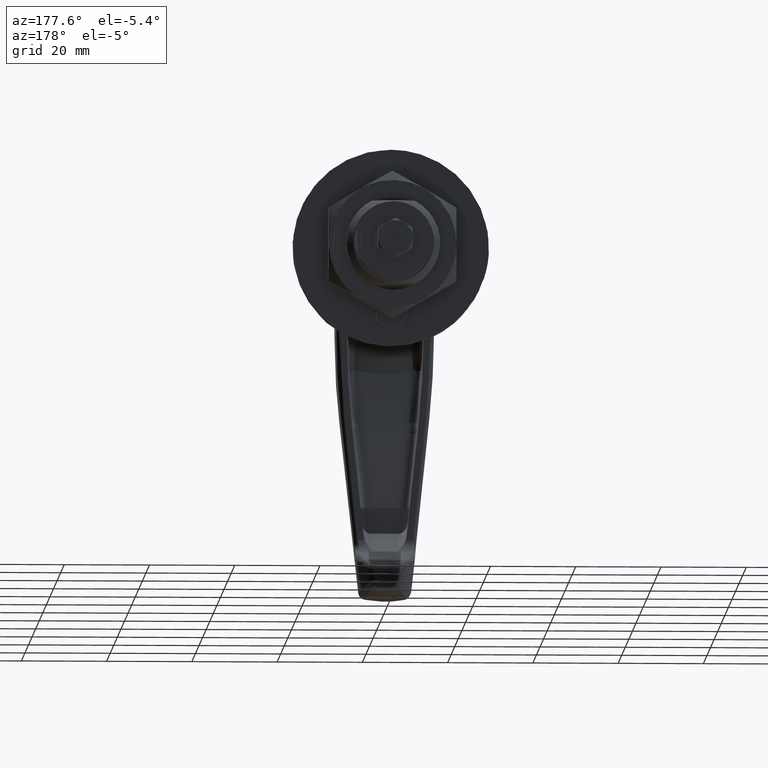
[diagram: clean part render]
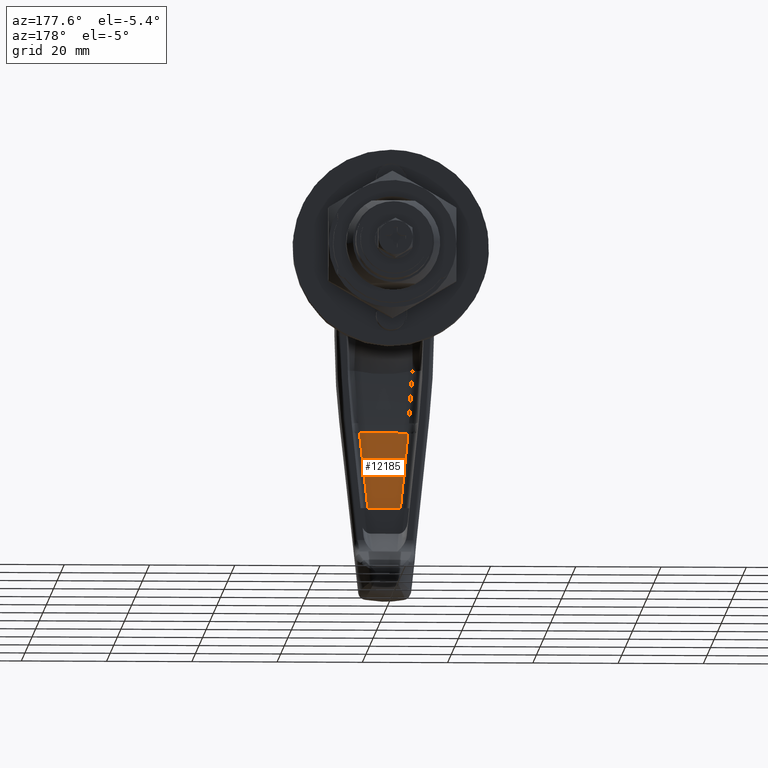
[diagram: same view with one face highlighted and labeled with its STEP entity id]
A machine part, auxiliary view. The second image highlights one B-rep face of the part: STEP entity #12185.
In plain terms, the highlighted face is a freeform B-spline surface patch.
Its self-contained STEP definition (entity closure, byte-faithful):
#10841=CARTESIAN_POINT('',(-40.165774785285848,-5.693558122846440,-39.918088988580152));
#10842=VERTEX_POINT('',#10841);
#10863=CARTESIAN_POINT('',(-38.053260976303847,-3.801615835442475,-58.0));
#10864=VERTEX_POINT('',#10863);
#10878=CARTESIAN_POINT('',(-38.053260976303847,-3.801615835442475,-58.0));
#10879=CARTESIAN_POINT('',(-40.165774785285848,-5.693558122846440,-39.918088988580152));
#10880=QUASI_UNIFORM_CURVE('',1,(#10878,#10879),.UNSPECIFIED.,.F.,.U.);
#10881=EDGE_CURVE('',#10864,#10842,#10880,.T.);
#11397=CARTESIAN_POINT('',(-40.165774785285848,5.693558122846440,-39.918088988580152));
#11398=VERTEX_POINT('',#11397);
#11414=CARTESIAN_POINT('',(-38.053260976303847,3.801615835442585,-58.0));
#11415=VERTEX_POINT('',#11414);
#11416=CARTESIAN_POINT('',(-40.165774785285848,5.693558122846440,-39.918088988580152));
#11417=CARTESIAN_POINT('',(-38.053260976303847,3.801615835442585,-58.0));
#11418=QUASI_UNIFORM_CURVE('',1,(#11416,#11417),.UNSPECIFIED.,.F.,.U.);
#11419=EDGE_CURVE('',#11398,#11415,#11418,.T.);
#12157=CARTESIAN_POINT('',(-38.053260976303847,3.801615835442585,-58.0));
#12158=CARTESIAN_POINT('',(-38.053260976303847,-3.801615835442475,-58.0));
#12159=QUASI_UNIFORM_CURVE('',1,(#12157,#12158),.UNSPECIFIED.,.F.,.U.);
#12160=EDGE_CURVE('',#11415,#10864,#12159,.T.);
#12170=CARTESIAN_POINT('',(-37.947740930734383,-6.262344664142457,-58.903191290771602));
#12171=CARTESIAN_POINT('',(-40.271294585319787,-6.262344664142457,-39.014899799452017));
#12172=CARTESIAN_POINT('',(-37.947740930734383,6.262344867759963,-58.903191290771602));
#12173=CARTESIAN_POINT('',(-40.271294585319787,6.262344867759963,-39.014899799452017));
#12174=B_SPLINE_SURFACE_WITH_KNOTS('',1,1,((#12170,#12172),(#12171,#12173)),.UNSPECIFIED.,.F.,.F.,.U.,(2,2),(2,2),(0.0,20.023562121396669),(0.0,12.524689531902419),.UNSPECIFIED.);
#12175=CARTESIAN_POINT('',(-40.165774785285848,5.693558122846440,-39.918088988580152));
#12176=CARTESIAN_POINT('',(-40.165774785285848,-5.693558122846440,-39.918088988580152));
#12177=QUASI_UNIFORM_CURVE('',1,(#12175,#12176),.UNSPECIFIED.,.F.,.U.);
#12178=EDGE_CURVE('',#11398,#10842,#12177,.T.);
#12179=ORIENTED_EDGE('',*,*,#12178,.T.);
#12180=ORIENTED_EDGE('',*,*,#10881,.F.);
#12181=ORIENTED_EDGE('',*,*,#12160,.F.);
#12182=ORIENTED_EDGE('',*,*,#11419,.F.);
#12183=EDGE_LOOP('',(#12179,#12180,#12181,#12182));
#12184=FACE_OUTER_BOUND('',#12183,.T.);
#12185=ADVANCED_FACE('',(#12184),#12174,.F.);